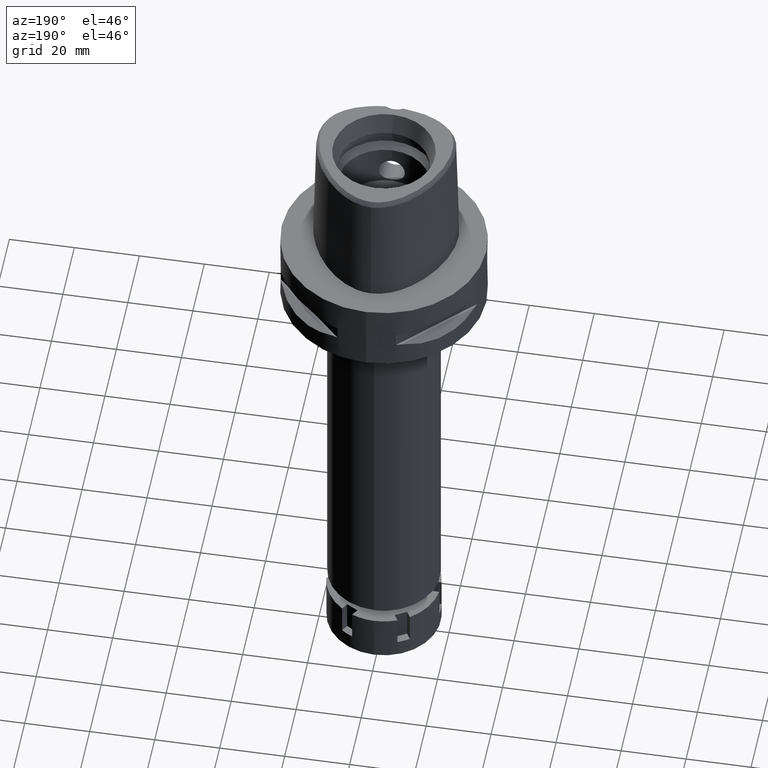
[diagram: clean part render]
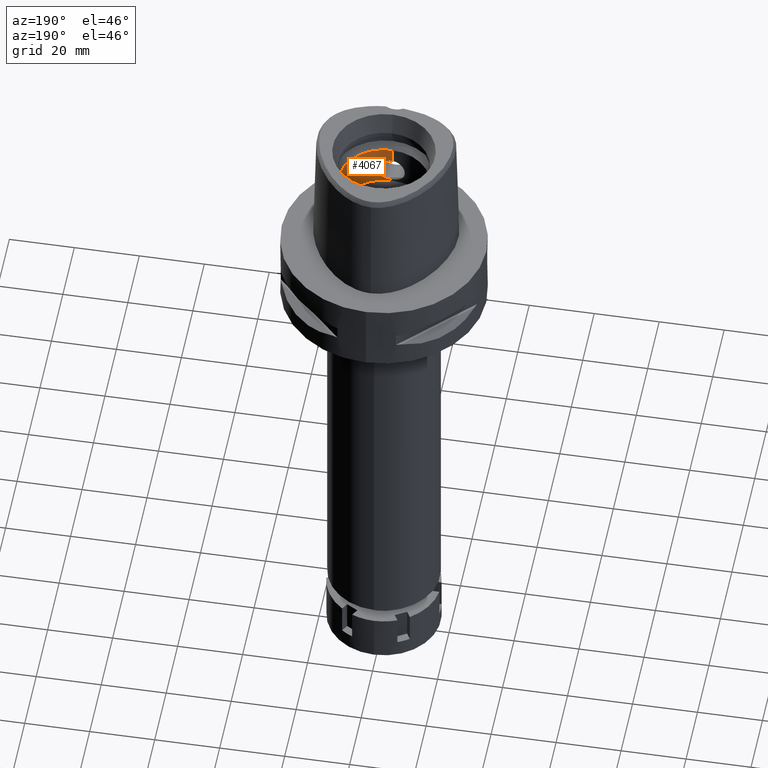
[diagram: same view with one face highlighted and labeled with its STEP entity id]
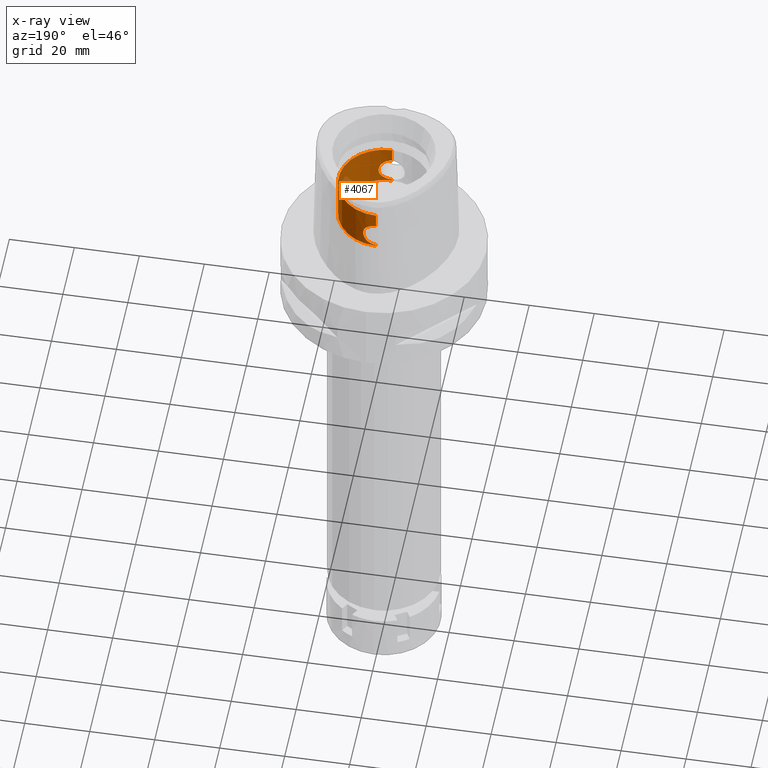
[diagram: x-ray of the same camera — body ghosted, the highlighted face saturated]
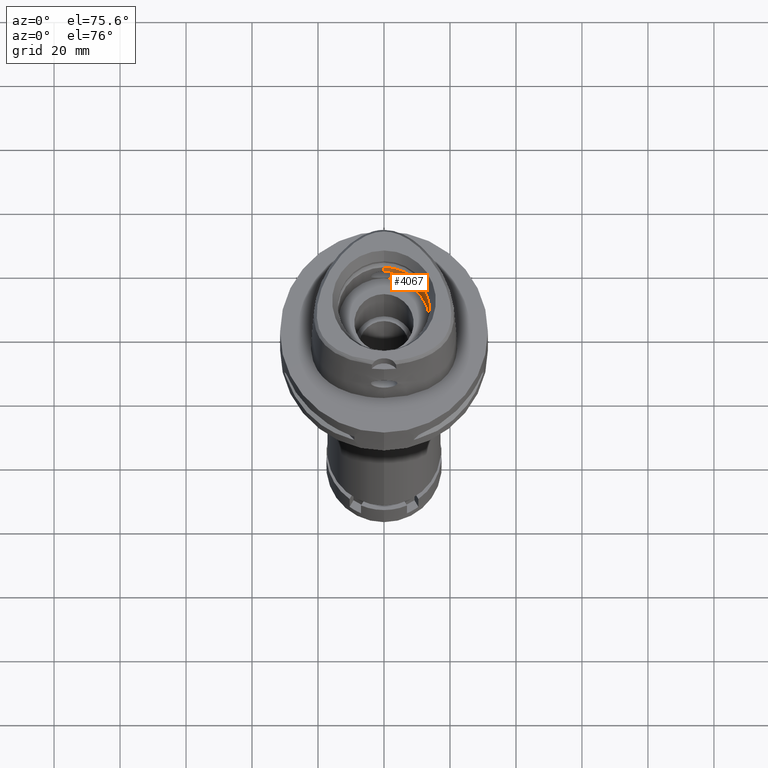
[diagram: same view with one face highlighted and labeled with its STEP entity id]
A machine part, auxiliary view. The second image highlights one B-rep face of the part: STEP entity #4067.
The next image is the same camera in x-ray: the body ghosted, the highlighted face saturated — about 9% of this face is hidden behind the body in this view.
A second angle (auxiliary view) of the same face is appended — the face is thin or edge-on in the first view.
In plain terms, the highlighted cylindrical surface (partial cylindrical patch) has radius 14 mm, axis along (0, 0, -1).
Its self-contained STEP definition (entity closure, byte-faithful):
#29 = CARTESIAN_POINT ( 'NONE',  ( 3.444134305109939564, -13.56976516763156049, 13.36865222198565561 ) ) ;
#44 = CARTESIAN_POINT ( 'NONE',  ( 1.600065394692234744, 13.90814645047113807, 19.22055538723221702 ) ) ;
#92 = DIRECTION ( 'NONE',  ( 0.0000000000000000000, -1.000000000000000000, 0.0000000000000000000 ) ) ;
#102 = CARTESIAN_POINT ( 'NONE',  ( 1.994196793350470953, 13.85732250606946003, 11.97431708272922002 ) ) ;
#104 = AXIS2_PLACEMENT_3D ( 'NONE', #5127, #3777, #3379 ) ;
#106 = EDGE_CURVE ( 'NONE', #5236, #1822, #3672, .T. ) ;
#125 = LINE ( 'NONE', #4030, #4649 ) ;
#135 = CARTESIAN_POINT ( 'NONE',  ( 3.267860856929353019, -13.61367823520136078, 13.10390269899082583 ) ) ;
#161 = CARTESIAN_POINT ( 'NONE',  ( 1.516910412645901429, 13.91749993127318064, 11.74477520274085229 ) ) ;
#163 = CARTESIAN_POINT ( 'NONE',  ( 3.702139074826315213, -13.50182043943946120, 13.85345734740507950 ) ) ;
#188 = CARTESIAN_POINT ( 'NONE',  ( 2.987578035450121572, -13.67819521536447702, 18.24080360132781919 ) ) ;
#205 = EDGE_CURVE ( 'NONE', #1822, #2465, #125, .T. ) ;
#211 = CARTESIAN_POINT ( 'NONE',  ( 2.749405349986303371, 13.72738952680676761, 12.52574890524282303 ) ) ;
#213 = CARTESIAN_POINT ( 'NONE',  ( 3.321853759952848595, -13.60021613419694297, 17.81705094759875152 ) ) ;
#233 = CARTESIAN_POINT ( 'NONE',  ( 0.0000000000000000000, -14.00000000000000000, 19.55000000000000071 ) ) ;
#242 = CARTESIAN_POINT ( 'NONE',  ( 2.619673022922138994, 13.75271275996641940, 12.41039726462985016 ) ) ;
#244 = CARTESIAN_POINT ( 'NONE',  ( 2.903830259238845191, -13.69557610161474948, 12.67649343709667953 ) ) ;
#270 = CARTESIAN_POINT ( 'NONE',  ( 2.705631081828257845, 13.73602433004955259, 12.48611241062261534 ) ) ;
#274 = CARTESIAN_POINT ( 'NONE',  ( 2.632435958395578091, -13.75053331393012712, 12.41927859767038989 ) ) ;
#286 = ORIENTED_EDGE ( 'NONE', *, *, #667, .T. ) ;
#302 = CARTESIAN_POINT ( 'NONE',  ( 3.359020109898814610, 13.59103542221254735, 13.23737089536243872 ) ) ;
#324 = CARTESIAN_POINT ( 'NONE',  ( 0.0000000000000000000, 0.0000000000000000000, 11.00000000000000000 ) ) ;
#334 = CARTESIAN_POINT ( 'NONE',  ( 3.361880068163155766, 13.59032751575134057, 13.24162249144547943 ) ) ;
#337 = CARTESIAN_POINT ( 'NONE',  ( 2.286401869814578713, -13.81203602588922230, 12.15707754366347437 ) ) ;
#360 = CARTESIAN_POINT ( 'NONE',  ( 2.356179768647385320, -13.80026442332236236, 12.20580376818401902 ) ) ;
#372 = EDGE_CURVE ( 'NONE', #5517, #5236, #1605, .T. ) ;
#385 = CARTESIAN_POINT ( 'NONE',  ( 2.993275682879698252, 13.67636296169212606, 18.22847972466929889 ) ) ;
#397 = FACE_OUTER_BOUND ( 'NONE', #674, .T. ) ;
#413 = EDGE_CURVE ( 'NONE', #5517, #5002, #3748, .T. ) ;
#460 = CARTESIAN_POINT ( 'NONE',  ( 3.649300473937637346, -13.51628050932879610, 13.73856294195509165 ) ) ;
#492 = CARTESIAN_POINT ( 'NONE',  ( 3.393648836081902154, -13.58244002077893064, 13.28961777950231671 ) ) ;
#521 = CARTESIAN_POINT ( 'NONE',  ( 0.0000000000000000000, -14.00000000000000000, 11.44999999999999929 ) ) ;
#561 = VECTOR ( 'NONE', #3531, 1000.000000000000000 ) ;
#600 = CARTESIAN_POINT ( 'NONE',  ( 3.754236443711939319, -13.48734669257275520, 13.98069631227876997 ) ) ;
#627 = CARTESIAN_POINT ( 'NONE',  ( 3.300146341868730016, -13.60553517925856859, 17.84781835519089199 ) ) ;
#630 = VERTEX_POINT ( 'NONE', #521 ) ;
#652 = CARTESIAN_POINT ( 'NONE',  ( 3.731947233726997659, 13.49355243646696678, 13.92674594029439028 ) ) ;
#654 = CARTESIAN_POINT ( 'NONE',  ( 2.824278146738441464, -13.71216806335095839, 18.40282419414096537 ) ) ;
#667 = EDGE_CURVE ( 'NONE', #4458, #5371, #1757, .T. ) ;
#674 = EDGE_LOOP ( 'NONE', ( #4596, #3588, #5116, #1867, #286, #4916, #1961, #1020 ) ) ;
#682 = CARTESIAN_POINT ( 'NONE',  ( 2.794188265665984883, 13.71831884113747613, 12.56820068599706985 ) ) ;
#711 = CARTESIAN_POINT ( 'NONE',  ( 3.253122838619350254, 13.61695847484784849, 13.08700209496323019 ) ) ;
#727 = CARTESIAN_POINT ( 'NONE',  ( 0.0000000000000000000, 14.00000000000000000, 11.00000000000000000 ) ) ;
#740 = CARTESIAN_POINT ( 'NONE',  ( 3.386213530919897519, 13.58429339872629527, 17.72172867399999774 ) ) ;
#742 = CARTESIAN_POINT ( 'NONE',  ( 2.474909159131547742, -13.77946166279600604, 12.29346908443046082 ) ) ;
#767 = CARTESIAN_POINT ( 'NONE',  ( 3.740349717813418629, 13.49122537259350985, 13.94682241177603288 ) ) ;
#798 = CARTESIAN_POINT ( 'NONE',  ( 2.425345327374605287, 13.78828047748906549, 18.74398637652861765 ) ) ;
#829 = CYLINDRICAL_SURFACE ( 'NONE', #104, 14.00000000000000000 ) ;
#844 = CARTESIAN_POINT ( 'NONE',  ( 2.474897425330298883, 13.77946391610721300, 18.70653994269108011 ) ) ;
#863 = CARTESIAN_POINT ( 'NONE',  ( 1.935032715380933022, -13.86568800699301107, 19.05844582699477030 ) ) ;
#890 = CARTESIAN_POINT ( 'NONE',  ( 3.641267411166618562, -13.51833533351897110, 17.27419309986312257 ) ) ;
#900 = CARTESIAN_POINT ( 'NONE',  ( 1.773859858298503012, 13.88717310935475524, 19.14143527715514992 ) ) ;
#914 = CARTESIAN_POINT ( 'NONE',  ( 3.217051634182986231, -13.62560167972273106, 17.96121095376075516 ) ) ;
#920 = CIRCLE ( 'NONE', #3365, 14.00000000000000000 ) ;
#1004 = CARTESIAN_POINT ( 'NONE',  ( 0.0000000000000000000, -14.00000000000000000, 11.00000000000000000 ) ) ;
#1016 = CARTESIAN_POINT ( 'NONE',  ( 3.612125191146808856, -13.52615234760308560, 17.33290907846121343 ) ) ;
#1020 = ORIENTED_EDGE ( 'NONE', *, *, #106, .F. ) ;
#1037 = VECTOR ( 'NONE', #2590, 1000.000000000000000 ) ;
#1049 = CARTESIAN_POINT ( 'NONE',  ( 3.344238891842337136, -13.59469201711720565, 17.78446291338760687 ) ) ;
#1074 = CARTESIAN_POINT ( 'NONE',  ( 3.354680329558042740, 13.59210945296616124, 13.23093247310055709 ) ) ;
#1077 = CARTESIAN_POINT ( 'NONE',  ( 4.027167981715002121, -13.40875010522974264, 14.99686531039766102 ) ) ;
#1097 = CARTESIAN_POINT ( 'NONE',  ( 3.267839164474154234, 13.61368337661979133, 17.89612675440678657 ) ) ;
#1100 = CARTESIAN_POINT ( 'NONE',  ( 0.4996170307295716984, -14.00000000000000355, 11.45000000000000107 ) ) ;
#1133 = CARTESIAN_POINT ( 'NONE',  ( 4.027216825694031499, 13.40877103518722357, 14.99603235332364903 ) ) ;
#1145 = CARTESIAN_POINT ( 'NONE',  ( 0.0000000000000000000, 14.00000000000000000, 24.19999999999999929 ) ) ;
#1163 = CARTESIAN_POINT ( 'NONE',  ( 3.444114222038757500, 13.56977022798827548, 17.63138026178977569 ) ) ;
#1190 = CARTESIAN_POINT ( 'NONE',  ( 3.612092317030220379, 13.52616139818937846, 13.66702611687112956 ) ) ;
#1221 = CARTESIAN_POINT ( 'NONE',  ( 2.286392394009954199, 13.81203773452794792, 18.84292893667480584 ) ) ;
#1266 = CARTESIAN_POINT ( 'NONE',  ( 1.758914213848991492, -13.88947879499290750, 19.15051695535359499 ) ) ;
#1318 = CARTESIAN_POINT ( 'NONE',  ( 4.027223470529567528, -13.40876944168271834, 16.00391502723211801 ) ) ;
#1341 = CARTESIAN_POINT ( 'NONE',  ( 3.953314660134230607, -13.43069195179432818, 14.61062672899636716 ) ) ;
#1385 = CARTESIAN_POINT ( 'NONE',  ( 1.210739730854810459, 13.94747155560755481, 11.63462642380360457 ) ) ;
#1444 = CARTESIAN_POINT ( 'NONE',  ( 3.731972597726727070, -13.49354487605845776, 17.07319389047233926 ) ) ;
#1469 = CARTESIAN_POINT ( 'NONE',  ( 1.643405570493256196, 13.90359095056343719, 11.79642487328022149 ) ) ;
#1472 = CARTESIAN_POINT ( 'NONE',  ( 3.144649004257418667, -13.64249969685167940, 12.94694166653767198 ) ) ;
#1506 = CARTESIAN_POINT ( 'NONE',  ( 2.619693227463823160, -13.75270887468661307, 18.58958572218649508 ) ) ;
#1526 = CARTESIAN_POINT ( 'NONE',  ( 3.377713256182831802, 13.58640893255668480, 17.73462749921339565 ) ) ;
#1552 = CARTESIAN_POINT ( 'NONE',  ( 3.792115437646679243, 13.47677934324684657, 16.92282825343409058 ) ) ;
#1587 = CARTESIAN_POINT ( 'NONE',  ( 4.027172463322592044, 13.40874935841158333, 16.00310739076642363 ) ) ;
#1590 = CARTESIAN_POINT ( 'NONE',  ( 2.010509632062541296, -13.85534039798980288, 11.98171533894314855 ) ) ;
#1605 = LINE ( 'NONE', #727, #4279 ) ;
#1610 = CARTESIAN_POINT ( 'NONE',  ( 0.0000000000000000000, 14.00000000000000000, 19.55000000000000071 ) ) ;
#1616 = CARTESIAN_POINT ( 'NONE',  ( 2.217806395109848783, 13.82320634840191609, 12.11121632281193605 ) ) ;
#1631 = CARTESIAN_POINT ( 'NONE',  ( 1.467178111807090790, -13.92282230864165449, 19.27494137943474684 ) ) ;
#1640 = CARTESIAN_POINT ( 'NONE',  ( 3.953315574815617683, 13.43069190713402961, 16.38937041772095071 ) ) ;
#1643 = CARTESIAN_POINT ( 'NONE',  ( 1.773869829159604228, -13.88717198022183119, 11.85856959825438750 ) ) ;
#1696 = CARTESIAN_POINT ( 'NONE',  ( 1.832682128947450639, 13.87954668815114267, 19.11223895308327414 ) ) ;
#1716 = CARTESIAN_POINT ( 'NONE',  ( 0.0000000000000000000, -14.00000000000000000, 24.19999999999999929 ) ) ;
#1735 = CARTESIAN_POINT ( 'NONE',  ( 1.516899316913374207, -13.91750090884602642, 19.25522928306563486 ) ) ;
#1745 = CARTESIAN_POINT ( 'NONE',  ( 2.903809840836996337, 13.69558042595941671, 18.32352754237540182 ) ) ;
#1757 = LINE ( 'NONE', #5132, #1037 ) ;
#1760 = CARTESIAN_POINT ( 'NONE',  ( 3.410743495979883466, -13.57816568318279060, 13.31599196301607613 ) ) ;
#1792 = LINE ( 'NONE', #1004, #561 ) ;
#1822 = VERTEX_POINT ( 'NONE', #1610 ) ;
#1827 = CARTESIAN_POINT ( 'NONE',  ( 2.083402352693820347, 13.84411649686240153, 12.02679904731587435 ) ) ;
#1860 = CARTESIAN_POINT ( 'NONE',  ( 1.307187133397777368, 13.93893568339380096, 11.66569962606505406 ) ) ;
#1864 = CARTESIAN_POINT ( 'NONE',  ( 2.564513564700615866, -13.76306012764494291, 18.63532267608531612 ) ) ;
#1867 = ORIENTED_EDGE ( 'NONE', *, *, #4763, .F. ) ;
#1888 = CARTESIAN_POINT ( 'NONE',  ( 1.467188112033413816, 13.92282148873381864, 11.72506250693289864 ) ) ;
#1890 = CARTESIAN_POINT ( 'NONE',  ( 3.760698389515004347, -13.48554827043490789, 13.99676262888475797 ) ) ;
#1918 = CARTESIAN_POINT ( 'NONE',  ( 3.446478207116122849, -13.56938250736906681, 17.63210248794235824 ) ) ;
#1946 = CARTESIAN_POINT ( 'NONE',  ( 4.049894426081060317, 13.40142315477328694, 15.74850829864217161 ) ) ;
#1949 = CARTESIAN_POINT ( 'NONE',  ( 3.850575600155246914, -13.46063562733534802, 16.78609245250580173 ) ) ;
#1961 = ORIENTED_EDGE ( 'NONE', *, *, #205, .F. ) ;
#1971 = CARTESIAN_POINT ( 'NONE',  ( 3.754225769600867846, 13.48734939608367966, 17.01933006533278814 ) ) ;
#1998 = CARTESIAN_POINT ( 'NONE',  ( 3.300115213668325165, 13.60554254247755246, 13.15213791935524590 ) ) ;
#2001 = CARTESIAN_POINT ( 'NONE',  ( 2.255326728030059957, -13.81714821576314733, 12.13607046265255107 ) ) ;
#2032 = CARTESIAN_POINT ( 'NONE',  ( 3.518019159262221862, 13.55099469856486749, 13.48901570195362432 ) ) ;
#2064 = CARTESIAN_POINT ( 'NONE',  ( 2.824245245329735532, 13.71217485459649943, 12.59714380724674676 ) ) ;
#2080 = CARTESIAN_POINT ( 'NONE',  ( 1.994209348898474676, -13.85732070567407170, 19.02567586467320737 ) ) ;
#2090 = CARTESIAN_POINT ( 'NONE',  ( 2.322867095772036539, 13.80594945643857230, 18.81782271191790201 ) ) ;
#2121 = CARTESIAN_POINT ( 'NONE',  ( 0.4996109250117751199, 13.99999999999999822, 19.54999999999999005 ) ) ;
#2188 = CARTESIAN_POINT ( 'NONE',  ( 3.524216152961116677, -13.54926445640474597, 13.50320070279009421 ) ) ;
#2201 = CARTESIAN_POINT ( 'NONE',  ( 1.643112089889030569, 13.90317243032712291, 19.20194634168781533 ) ) ;
#2264 = CARTESIAN_POINT ( 'NONE',  ( 1.758911448488973184, 13.88947925419896201, 11.84948192320104532 ) ) ;
#2293 = CARTESIAN_POINT ( 'NONE',  ( 3.381275431629196859, -13.58552310375113947, 13.27076317275104600 ) ) ;
#2310 = DIRECTION ( 'NONE',  ( 0.0000000000000000000, 0.0000000000000000000, 1.000000000000000000 ) ) ;
#2327 = CARTESIAN_POINT ( 'NONE',  ( 3.681917144189346125, -13.50730066061704093, 17.18730806971668201 ) ) ;
#2354 = CARTESIAN_POINT ( 'NONE',  ( 3.359058616904238459, -13.59102609449451116, 17.76257193799834155 ) ) ;
#2375 = CARTESIAN_POINT ( 'NONE',  ( 3.524199374407259722, 13.54926875963957933, 17.49682897130887227 ) ) ;
#2378 = CARTESIAN_POINT ( 'NONE',  ( 3.354718119057051418, -13.59210031745036140, 17.76901166031866452 ) ) ;
#2407 = CARTESIAN_POINT ( 'NONE',  ( 3.098494805694566256, 13.65307097543445813, 18.10922060507405362 ) ) ;
#2433 = CARTESIAN_POINT ( 'NONE',  ( 3.092390698714773567, 13.65467114209335264, 12.88130927472243847 ) ) ;
#2436 = CARTESIAN_POINT ( 'NONE',  ( 2.993295809006948360, -13.67635858830081474, 12.77154234738791239 ) ) ;
#2459 = CARTESIAN_POINT ( 'NONE',  ( 3.750524584725995147, 13.48837842770463169, 17.02843767657987328 ) ) ;
#2462 = CARTESIAN_POINT ( 'NONE',  ( 2.749429150023159796, -13.72794355115766329, 12.52109900925337094 ) ) ;
#2465 = VERTEX_POINT ( 'NONE', #1145 ) ;
#2490 = CARTESIAN_POINT ( 'NONE',  ( 2.407026743236367672, 13.79179092510370097, 12.24014823374410454 ) ) ;
#2534 = DIRECTION ( 'NONE',  ( 0.0000000000000000000, 0.0000000000000000000, 1.000000000000000000 ) ) ;
#2546 = CARTESIAN_POINT ( 'NONE',  ( 2.935444872375262637, 13.68884853175270422, 18.29060286011752723 ) ) ;
#2573 = CARTESIAN_POINT ( 'NONE',  ( 1.559041427489886278, 13.91280564626705818, 19.23793945981500997 ) ) ;
#2590 = DIRECTION ( 'NONE',  ( 0.0000000000000000000, 0.0000000000000000000, 1.000000000000000000 ) ) ;
#2595 = CARTESIAN_POINT ( 'NONE',  ( 2.083417932766036262, -13.84411419571719470, 18.97319161937867094 ) ) ;
#2619 = CARTESIAN_POINT ( 'NONE',  ( 4.050109039351831086, -13.40137442886396535, 15.74496307468086265 ) ) ;
#2643 = CARTESIAN_POINT ( 'NONE',  ( 2.225307842479133935, -13.82200032480936791, 18.88386244170206041 ) ) ;
#2692 = CARTESIAN_POINT ( 'NONE',  ( 0.0000000000000000000, 14.00000000000000000, 11.44999999999999929 ) ) ;
#2710 = CARTESIAN_POINT ( 'NONE',  ( 0.0000000000000000000, 14.00000000000000000, 11.00000000000000000 ) ) ;
#2744 = CARTESIAN_POINT ( 'NONE',  ( 3.253150413822480047, -13.61695205280139120, 17.91296083928640215 ) ) ;
#2773 = CARTESIAN_POINT ( 'NONE',  ( 2.230287417955466367, -13.82119696819923327, 18.88058087294110976 ) ) ;
#2795 = CARTESIAN_POINT ( 'NONE',  ( 3.557088666341913452, 13.54068383479801696, 17.43752651043655888 ) ) ;
#2798 = CARTESIAN_POINT ( 'NONE',  ( 2.705656092661654188, -13.73601936352376995, 18.51386516676384986 ) ) ;
#2822 = CARTESIAN_POINT ( 'NONE',  ( 3.864694685434272969, 13.45627952657940796, 16.71292491331624319 ) ) ;
#2842 = AXIS2_PLACEMENT_3D ( 'NONE', #324, #2874, #4243 ) ;
#2853 = CARTESIAN_POINT ( 'NONE',  ( 3.344202712280511136, 13.59470072215733438, 13.21548413948281997 ) ) ;
#2857 = CARTESIAN_POINT ( 'NONE',  ( 1.559056483625618883, -13.91280418779705386, 11.76206681924250752 ) ) ;
#2874 = DIRECTION ( 'NONE',  ( 0.0000000000000000000, 0.0000000000000000000, -1.000000000000000000 ) ) ;
#2883 = CARTESIAN_POINT ( 'NONE',  ( 3.446439376995800608, 13.56939223702177699, 13.36783492912207905 ) ) ;
#2900 = CARTESIAN_POINT ( 'NONE',  ( 1.210730804435200314, -13.94747211364480322, 19.36537636551466690 ) ) ;
#2913 = CARTESIAN_POINT ( 'NONE',  ( 3.833372613769522541, 13.46518805228033244, 16.80994934954906128 ) ) ;
#2916 = CARTESIAN_POINT ( 'NONE',  ( 2.268773195283242394, -13.81494468100451023, 12.14511832103185718 ) ) ;
#2931 = CARTESIAN_POINT ( 'NONE',  ( 0.2481241772469208740, -14.00000000000000000, 19.55000000000000071 ) ) ;
#2944 = CARTESIAN_POINT ( 'NONE',  ( 2.255317399664305000, 13.81714987027313235, 18.86393579140712973 ) ) ;
#2994 = CARTESIAN_POINT ( 'NONE',  ( 2.010501717821064460, 13.85534156541368667, 19.01828921528356986 ) ) ;
#3011 = CARTESIAN_POINT ( 'NONE',  ( 1.017639181934914649, -13.96323047955135976, 19.42236212083248503 ) ) ;
#3021 = CARTESIAN_POINT ( 'NONE',  ( 1.686542341523468602, 13.89794981159688980, 19.18226932052732536 ) ) ;
#3042 = CARTESIAN_POINT ( 'NONE',  ( 3.864698997087948396, -13.45627842728415935, 14.28708901167128609 ) ) ;
#3052 = CARTESIAN_POINT ( 'NONE',  ( 2.261340657161257095, 13.81616386827182019, 18.85988797640481351 ) ) ;
#3064 = CARTESIAN_POINT ( 'NONE',  ( 2.838009928923838299, -13.70933862723131291, 18.38942009772304687 ) ) ;
#3167 = CARTESIAN_POINT ( 'NONE',  ( 3.792123985356183447, -13.47677720437842019, 14.07719458704158022 ) ) ;
#3199 = CARTESIAN_POINT ( 'NONE',  ( 3.098515381885727393, -13.65306636117298389, 12.89080379854775238 ) ) ;
#3232 = CARTESIAN_POINT ( 'NONE',  ( 3.740374405824263171, -13.49121797331939376, 17.05311813184026093 ) ) ;
#3250 = CARTESIAN_POINT ( 'NONE',  ( 3.410721871959659257, 13.57817107781601074, 17.68404181484999071 ) ) ;
#3278 = CARTESIAN_POINT ( 'NONE',  ( 3.649287754606132417, 13.51628378879347814, 17.26146357314931024 ) ) ;
#3312 = CARTESIAN_POINT ( 'NONE',  ( 3.850558670354384372, 13.46064117905768498, 14.21385490519483774 ) ) ;
#3315 = CARTESIAN_POINT ( 'NONE',  ( 2.935464796398259413, -13.68884427349787636, 12.70941809089527830 ) ) ;
#3338 = CARTESIAN_POINT ( 'NONE',  ( 2.987551070598235103, 13.67820116345343351, 12.75916637442935020 ) ) ;
#3340 = CARTESIAN_POINT ( 'NONE',  ( 1.571471244899176778, -13.91140584751626186, 11.76727716384500333 ) ) ;
#3355 = CARTESIAN_POINT ( 'NONE',  ( 2.206604282644675674, -13.82500263683901487, 18.89610616578819347 ) ) ;
#3365 = AXIS2_PLACEMENT_3D ( 'NONE', #5197, #2310, #92 ) ;
#3367 = CARTESIAN_POINT ( 'NONE',  ( 3.770295828577627351, 13.48287449147565376, 16.97915267913733572 ) ) ;
#3370 = CARTESIAN_POINT ( 'NONE',  ( 1.029195579378260561, -13.97152789805618411, 11.54372935797607624 ) ) ;
#3379 = DIRECTION ( 'NONE',  ( 0.0000000000000000000, -1.000000000000000000, 0.0000000000000000000 ) ) ;
#3420 = CARTESIAN_POINT ( 'NONE',  ( 1.499090398665863022, -13.91942988264788639, 19.26238249073140807 ) ) ;
#3429 = CARTESIAN_POINT ( 'NONE',  ( 2.130873031675732943, 13.83743700475326222, 18.94716637659228908 ) ) ;
#3442 = CARTESIAN_POINT ( 'NONE',  ( 0.8886530556046985385, -13.97198512727722708, 19.45346844014616394 ) ) ;
#3452 = CARTESIAN_POINT ( 'NONE',  ( 2.268763823005850444, 13.81494635581264063, 18.85488801691585081 ) ) ;
#3469 = CARTESIAN_POINT ( 'NONE',  ( 2.180430719104277770, -13.82916524274332204, 18.91303019137124508 ) ) ;
#3501 = CARTESIAN_POINT ( 'NONE',  ( 3.386236333441687396, -13.58428775399595700, 13.27830608080645547 ) ) ;
#3515 = EDGE_CURVE ( 'NONE', #5371, #2465, #920, .T. ) ;
#3531 = DIRECTION ( 'NONE',  ( 0.0000000000000000000, 0.0000000000000000000, 1.000000000000000000 ) ) ;
#3543 = EDGE_CURVE ( 'NONE', #5002, #630, #1792, .T. ) ;
#3562 = DIRECTION ( 'NONE',  ( 0.0000000000000000000, 0.0000000000000000000, 1.000000000000000000 ) ) ;
#3567 = CARTESIAN_POINT ( 'NONE',  ( 2.128115661502098632, 13.83734960245050161, 12.05387220701158668 ) ) ;
#3588 = ORIENTED_EDGE ( 'NONE', *, *, #413, .T. ) ;
#3596 = CARTESIAN_POINT ( 'NONE',  ( 2.180412222332861027, 13.82916808513869356, 12.08695799697060025 ) ) ;
#3598 = CARTESIAN_POINT ( 'NONE',  ( 2.312907190676523506, -13.80784060208447528, 18.82598581438754337 ) ) ;
#3619 = CARTESIAN_POINT ( 'NONE',  ( 2.206585077432667852, 13.82500562469161487, 12.10388135703218460 ) ) ;
#3621 = CARTESIAN_POINT ( 'NONE',  ( 3.557104272937164247, -13.54067981902765361, 13.56250217907580513 ) ) ;
#3651 = CARTESIAN_POINT ( 'NONE',  ( 3.518056051390934691, -13.55098508630389631, 17.51091968138044663 ) ) ;
#3672 = B_SPLINE_CURVE_WITH_KNOTS ( 'NONE', 3,
 ( #2692, #4033, #4005, #5287, #5230, #1385, #1860, #4475, #1888, #4395, #161, #1469, #2264, #3975, #102, #1827, #3567, #3596, #3619, #1616, #4202, #5462, #4086, #2490, #4562, #242, #270, #211, #682, #2064, #4167, #3338, #2433, #3704, #711, #1998, #5485, #2853, #1074, #302, #334, #4497, #2883, #2032, #1190, #3764, #4972, #3793, #5396, #652, #4143, #767, #3312, #3728, #1133, #5424, #1946, #1587, #1640, #5033, #2822, #2913, #1552, #3367, #5372, #1971, #2459, #4622, #3278, #2795, #2375, #5008, #1163, #3250, #4590, #740, #3680, #1526, #4945, #1097, #4527, #2407, #4118, #385, #2546, #1745, #4729, #3922, #844, #798, #5541, #2090, #1221, #3452, #3052, #5511, #2944, #3429, #2994, #1696, #900, #3021, #2201, #44, #4756, #2573, #3895, #2121, #5119 ),
 .UNSPECIFIED., .F., .F.,
 ( 4, 2, 2, 1, 1, 2, 2, 2, 2, 1, 1, 1, 2, 2, 2, 2, 1, 2, 2, 2, 2, 1, 1, 1, 2, 2, 2, 2, 1, 1, 2, 2, 2, 2, 2, 2, 1, 1, 1, 2, 2, 2, 2, 1, 1, 1, 2, 2, 2, 2, 2, 2, 2, 2, 1, 1, 1, 2, 2, 2, 2, 1, 2, 2, 4 ),
 ( 0.0000000000000000000, 0.06250000000002138567, 0.09375000000003208545, 0.1093750000000373868, 0.1171875000000400235, 0.1210937500000413142, 0.1250000000000425771, 0.1562500000000529021, 0.1718750000000581479, 0.1796875000000608402, 0.1835937500000622002, 0.1855468750000628664, 0.1865234375000631162, 0.1875000000000633660, 0.2187500000000720257, 0.2343750000000762446, 0.2421875000000783817, 0.2460937500000794087, 0.2500000000000804357, 0.2812500000000883738, 0.2968750000000922040, 0.3046875000000943134, 0.3085937500000953126, 0.3105468750000957567, 0.3115234375000957012, 0.3125000000000956457, 0.3437500000000897615, 0.3593750000000867639, 0.3671875000000850986, 0.3710937500000843214, 0.3730468750000841549, 0.3750000000000839884, 0.4375000000000763833, 0.5000000000000687228, 0.5625000000000610623, 0.5937500000000568434, 0.6093750000000547340, 0.6171875000000537348, 0.6210937500000535127, 0.6230468750000534017, 0.6250000000000532907, 0.6562500000000528466, 0.6718750000000526246, 0.6796875000000521805, 0.6835937500000519584, 0.6855468750000521805, 0.6865234375000519584, 0.6875000000000517364, 0.7187500000000504041, 0.7343750000000500711, 0.7421875000000499600, 0.7500000000000498490, 0.7812500000000496270, 0.7968750000000497380, 0.8046875000000501821, 0.8085937500000504041, 0.8105468750000504041, 0.8115234375000504041, 0.8125000000000504041, 0.8437500000000428546, 0.8593750000000391909, 0.8671875000000375255, 0.8710937500000365263, 0.8750000000000355271, 1.000000000000000000 ),
 .UNSPECIFIED. ) ;
#3680 = CARTESIAN_POINT ( 'NONE',  ( 3.381252386275208188, 13.58552879951880676, 17.72927178203262955 ) ) ;
#3682 = CARTESIAN_POINT ( 'NONE',  ( 2.425356293392302298, -13.78827839653583354, 12.25602180745960545 ) ) ;
#3704 = CARTESIAN_POINT ( 'NONE',  ( 3.217025596349118555, 13.62560769370299951, 13.03875506105696758 ) ) ;
#3728 = CARTESIAN_POINT ( 'NONE',  ( 3.927462924626538232, 13.43840419036665779, 14.47652859066138653 ) ) ;
#3732 = CARTESIAN_POINT ( 'NONE',  ( 1.643124464740160606, -13.90317117702929828, 11.79805916107681618 ) ) ;
#3748 = CIRCLE ( 'NONE', #2842, 14.00000000000000000 ) ;
#3764 = CARTESIAN_POINT ( 'NONE',  ( 3.641236061999908014, 13.51834413261587109, 13.72574250724094469 ) ) ;
#3777 = DIRECTION ( 'NONE',  ( 0.0000000000000000000, 0.0000000000000000000, -1.000000000000000000 ) ) ;
#3793 = CARTESIAN_POINT ( 'NONE',  ( 3.701448599127524108, 13.50196410077353448, 13.85577559946501047 ) ) ;
#3795 = CARTESIAN_POINT ( 'NONE',  ( 2.130881178330037429, -13.83743566614538878, 12.05283858994643609 ) ) ;
#3895 = CARTESIAN_POINT ( 'NONE',  ( 1.029184106487188499, 13.97152837429127814, 19.45627297032396186 ) ) ;
#3911 = CARTESIAN_POINT ( 'NONE',  ( 3.471407568611402983, -13.56281871368658543, 13.41360808472617805 ) ) ;
#3922 = CARTESIAN_POINT ( 'NONE',  ( 2.632421440604336027, 13.75053619292203422, 18.58073368517403168 ) ) ;
#3975 = CARTESIAN_POINT ( 'NONE',  ( 1.935022422099377248, 13.86568947271855201, 11.94154862979159937 ) ) ;
#4005 = CARTESIAN_POINT ( 'NONE',  ( 0.5031375785651610588, 13.99299620741434325, 11.47286437004442305 ) ) ;
#4008 = CARTESIAN_POINT ( 'NONE',  ( 3.329855789848241709, -13.59830196918598055, 13.19313464223616705 ) ) ;
#4030 = CARTESIAN_POINT ( 'NONE',  ( 0.0000000000000000000, 14.00000000000000000, 19.55000000000000071 ) ) ;
#4033 = CARTESIAN_POINT ( 'NONE',  ( 0.2481266265099588697, 14.00000000000000000, 11.44999999999999929 ) ) ;
#4035 = CARTESIAN_POINT ( 'NONE',  ( 3.701476196218872250, -13.50195603622213092, 17.14416223936576600 ) ) ;
#4064 = CARTESIAN_POINT ( 'NONE',  ( 3.361919059612541449, -13.59031805818456284, 17.75831946434291808 ) ) ;
#4067 = ADVANCED_FACE ( 'NONE', ( #397 ), #829, .F. ) ;
#4086 = CARTESIAN_POINT ( 'NONE',  ( 2.312892876173468171, 13.80784294826023206, 12.17400404921139589 ) ) ;
#4089 = CARTESIAN_POINT ( 'NONE',  ( 3.362175151429778186, -13.59025468045918572, 17.75794138952741008 ) ) ;
#4118 = CARTESIAN_POINT ( 'NONE',  ( 3.020660456626143464, 13.67036005578519386, 18.19808468408423963 ) ) ;
#4120 = CARTESIAN_POINT ( 'NONE',  ( 2.261349992708959533, -13.81616220668975537, 12.14011830679867110 ) ) ;
#4143 = CARTESIAN_POINT ( 'NONE',  ( 3.737862436382984210, 13.49191471466118131, 13.94085186772397122 ) ) ;
#4145 = CARTESIAN_POINT ( 'NONE',  ( 2.322876849046348280, -13.80594766825983477, 12.18218411294631487 ) ) ;
#4165 = CARTESIAN_POINT ( 'NONE',  ( 0.0000000000000000000, 14.00000000000000000, 11.44999999999999929 ) ) ;
#4167 = CARTESIAN_POINT ( 'NONE',  ( 2.837973772893474411, 13.70934612522084173, 12.61054438063453098 ) ) ;
#4170 = CARTESIAN_POINT ( 'NONE',  ( 0.0000000000000000000, -14.00000000000000000, 11.44999999999999929 ) ) ;
#4202 = CARTESIAN_POINT ( 'NONE',  ( 2.225288147325894528, 13.82200341650443498, 12.11612460655873313 ) ) ;
#4243 = DIRECTION ( 'NONE',  ( 0.0000000000000000000, 1.000000000000000000, 0.0000000000000000000 ) ) ;
#4279 = VECTOR ( 'NONE', #2534, 1000.000000000000000 ) ;
#4303 = CARTESIAN_POINT ( 'NONE',  ( 0.5031329880713201197, -13.99299628181930544, 19.52713608389184330 ) ) ;
#4325 = CARTESIAN_POINT ( 'NONE',  ( 3.770305607765263467, -13.48287202864421452, 14.02087226160112010 ) ) ;
#4350 = CARTESIAN_POINT ( 'NONE',  ( 2.794219043454203799, -13.71831254960125079, 18.43176999258679416 ) ) ;
#4395 = CARTESIAN_POINT ( 'NONE',  ( 1.499100513058812201, 13.91942902670013638, 11.73762153891946447 ) ) ;
#4451 = CARTESIAN_POINT ( 'NONE',  ( 3.922079205926539913, -13.43983130148735583, 14.48117699415297821 ) ) ;
#4458 = VERTEX_POINT ( 'NONE', #233 ) ;
#4475 = CARTESIAN_POINT ( 'NONE',  ( 1.419273682516925206, 13.92782810608995625, 11.70655701251878789 ) ) ;
#4478 = CARTESIAN_POINT ( 'NONE',  ( 2.217825895420810767, -13.82320329823991401, 18.88877091520833318 ) ) ;
#4497 = CARTESIAN_POINT ( 'NONE',  ( 3.362135645915919735, 13.59026426608101623, 13.24199978628648466 ) ) ;
#4502 = CARTESIAN_POINT ( 'NONE',  ( 3.092415008935291088, -13.65466569416509302, 18.11866219970372427 ) ) ;
#4527 = CARTESIAN_POINT ( 'NONE',  ( 3.144628172867338201, 13.64250443836072435, 18.05308396090352474 ) ) ;
#4562 = CARTESIAN_POINT ( 'NONE',  ( 2.564495781835727684, 13.76306347781942740, 12.36466282433596042 ) ) ;
#4590 = CARTESIAN_POINT ( 'NONE',  ( 3.393626394335426788, 13.58244558944580405, 17.71041667753680571 ) ) ;
#4592 = CARTESIAN_POINT ( 'NONE',  ( 2.256430671647058350, -13.81696743697042251, 12.13681261213642415 ) ) ;
#4596 = ORIENTED_EDGE ( 'NONE', *, *, #372, .F. ) ;
#4608 = CARTESIAN_POINT ( 'NONE',  ( 1.419263858855973170, -13.92782887280988824, 19.29344666030895894 ) ) ;
#4622 = CARTESIAN_POINT ( 'NONE',  ( 3.702127444390315159, 13.50182339615068727, 17.14656876326777279 ) ) ;
#4642 = CARTESIAN_POINT ( 'NONE',  ( 2.128132661679641657, -13.83734705124413544, 18.94611731522211073 ) ) ;
#4649 = VECTOR ( 'NONE', #3562, 1000.000000000000000 ) ;
#4706 = CARTESIAN_POINT ( 'NONE',  ( 0.0000000000000000000, -14.00000000000000000, 11.00000000000000000 ) ) ;
#4719 = CARTESIAN_POINT ( 'NONE',  ( 1.307177758832643200, -13.93893633211208005, 19.33430355922904198 ) ) ;
#4729 = CARTESIAN_POINT ( 'NONE',  ( 2.749412118830250940, 13.72794699207909908, 18.47891641197558243 ) ) ;
#4745 = CARTESIAN_POINT ( 'NONE',  ( 3.833378784114828797, -13.46518651549687284, 14.19006897786093369 ) ) ;
#4756 = CARTESIAN_POINT ( 'NONE',  ( 1.571457089741343793, 13.91140721977019368, 19.23272879698699001 ) ) ;
#4763 = EDGE_CURVE ( 'NONE', #4458, #630, #5456, .T. ) ;
#4769 = CARTESIAN_POINT ( 'NONE',  ( 2.749433056070069270, -13.72738395001101530, 18.47422555712543257 ) ) ;
#4863 = CARTESIAN_POINT ( 'NONE',  ( 3.750535583141733742, -13.48837563529462713, 13.97158931176320351 ) ) ;
#4893 = CARTESIAN_POINT ( 'NONE',  ( 3.020680690208538355, -13.67035562331175491, 12.80193796120899208 ) ) ;
#4916 = ORIENTED_EDGE ( 'NONE', *, *, #3515, .T. ) ;
#4923 = CARTESIAN_POINT ( 'NONE',  ( 4.049890164045743646, -13.40142381087270174, 15.25144457808762510 ) ) ;
#4945 = CARTESIAN_POINT ( 'NONE',  ( 3.329833399432507335, 13.59830740143285155, 17.80689756936500245 ) ) ;
#4947 = CARTESIAN_POINT ( 'NONE',  ( 1.686553841137762522, -13.89794860813394628, 11.81773595103047825 ) ) ;
#4972 = CARTESIAN_POINT ( 'NONE',  ( 3.681888265789251768, 13.50730898608306596, 13.81262890101244345 ) ) ;
#5002 = VERTEX_POINT ( 'NONE', #4706 ) ;
#5008 = CARTESIAN_POINT ( 'NONE',  ( 3.471388650637377449, 13.56282351116202278, 17.58642340598301246 ) ) ;
#5010 = CARTESIAN_POINT ( 'NONE',  ( 1.600078814842328390, -13.90814512833361505, 11.77945038584475412 ) ) ;
#5033 = CARTESIAN_POINT ( 'NONE',  ( 3.922078288965881399, 13.43983163058567598, 16.51882742556871264 ) ) ;
#5110 = CARTESIAN_POINT ( 'NONE',  ( 1.643402327193238976, -13.90359116571691622, 19.20357680869639339 ) ) ;
#5116 = ORIENTED_EDGE ( 'NONE', *, *, #3543, .T. ) ;
#5119 = CARTESIAN_POINT ( 'NONE',  ( 0.0000000000000000000, 14.00000000000000000, 19.55000000000000071 ) ) ;
#5127 = CARTESIAN_POINT ( 'NONE',  ( 0.0000000000000000000, 0.0000000000000000000, 39.89999999999999858 ) ) ;
#5132 = CARTESIAN_POINT ( 'NONE',  ( 0.0000000000000000000, -14.00000000000000000, 19.55000000000000071 ) ) ;
#5159 = CARTESIAN_POINT ( 'NONE',  ( 3.737887346441685743, -13.49190726130687601, 17.05908841074321813 ) ) ;
#5191 = CARTESIAN_POINT ( 'NONE',  ( 3.927475894227258735, -13.43840014691404683, 16.52342187611872504 ) ) ;
#5197 = CARTESIAN_POINT ( 'NONE',  ( 0.0000000000000000000, 0.0000000000000000000, 24.19999999999999929 ) ) ;
#5230 = CARTESIAN_POINT ( 'NONE',  ( 1.017647129622376134, 13.96323008892529138, 11.57763991488771715 ) ) ;
#5236 = VERTEX_POINT ( 'NONE', #4165 ) ;
#5287 = CARTESIAN_POINT ( 'NONE',  ( 0.8886602406458201653, 13.97198482965736588, 11.54653314444766821 ) ) ;
#5289 = CARTESIAN_POINT ( 'NONE',  ( 2.407040127179533417, -13.79178862306922326, 18.75984205951462869 ) ) ;
#5319 = CARTESIAN_POINT ( 'NONE',  ( 3.377736576017047909, -13.58640317541383702, 13.26540774977728709 ) ) ;
#5349 = CARTESIAN_POINT ( 'NONE',  ( 3.723011875671556670, -13.49602288719285070, 17.09439534801255434 ) ) ;
#5371 = VERTEX_POINT ( 'NONE', #1716 ) ;
#5372 = CARTESIAN_POINT ( 'NONE',  ( 3.760688074393179203, 13.48555087701916833, 17.00326317844757540 ) ) ;
#5396 = CARTESIAN_POINT ( 'NONE',  ( 3.722985834075813294, 13.49603060517026876, 13.90554383511542191 ) ) ;
#5424 = CARTESIAN_POINT ( 'NONE',  ( 4.050104837865987406, 13.40137507185002264, 15.25494482419060205 ) ) ;
#5456 = B_SPLINE_CURVE_WITH_KNOTS ( 'NONE', 3,
 ( #5475, #2931, #4303, #3442, #3011, #2900, #4719, #4608, #1631, #3420, #1735, #5110, #1266, #863, #2080, #2595, #4642, #3469, #3355, #4478, #2643, #2773, #3598, #5289, #1864, #1506, #2798, #4769, #4350, #654, #3064, #188, #4502, #914, #2744, #627, #213, #1049, #2378, #2354, #4064, #4089, #1918, #3651, #1016, #890, #2327, #4035, #5349, #1444, #5159, #3232, #1949, #5191, #1318, #2619, #4923, #1077, #1341, #4451, #3042, #4745, #3167, #4325, #1890, #600, #4863, #163, #460, #3621, #2188, #3911, #29, #1760, #492, #3501, #2293, #5319, #4008, #135, #1472, #3199, #4893, #2436, #3315, #244, #2462, #274, #742, #3682, #360, #4145, #337, #2916, #4120, #4592, #2001, #3795, #1590, #5487, #1643, #4947, #3732, #5010, #3340, #2857, #3370, #1100, #4170 ),
 .UNSPECIFIED., .F., .F.,
 ( 4, 2, 2, 1, 1, 2, 2, 2, 2, 1, 1, 1, 2, 2, 2, 2, 1, 2, 2, 2, 2, 1, 1, 1, 2, 2, 2, 2, 1, 1, 2, 2, 2, 2, 2, 2, 1, 1, 1, 2, 2, 2, 2, 1, 1, 1, 2, 2, 2, 2, 2, 2, 2, 2, 1, 1, 1, 2, 2, 2, 2, 1, 2, 2, 4 ),
 ( 0.0000000000000000000, 0.06249999999994695909, 0.09374999999992046640, 0.1093749999999070882, 0.1171874999999003714, 0.1210937499998970546, 0.1249999999998937378, 0.1562499999998678002, 0.1718749999998550326, 0.1796874999998488431, 0.1835937499998455125, 0.1855468749998440137, 0.1865234374998430977, 0.1874999999998421818, 0.2187499999998184230, 0.2343749999998064881, 0.2421874999998005484, 0.2460937499997977451, 0.2499999999997949973, 0.2812499999997747357, 0.2968749999997642441, 0.3046874999997590816, 0.3085937499997564726, 0.3105468749997550848, 0.3115234374997549183, 0.3124999999997547517, 0.3437499999997624123, 0.3593749999997665201, 0.3671874999997685185, 0.3710937499997691846, 0.3730468749997694622, 0.3749999999997697397, 0.4374999999997811195, 0.4999999999997926103, 0.5624999999998034905, 0.5937499999998089306, 0.6093749999998114841, 0.6171874999998129274, 0.6210937499998135936, 0.6230468749998141487, 0.6249999999998147038, 0.6562499999998239186, 0.6718749999998283595, 0.6796874999998306910, 0.6835937499998319122, 0.6855468749998325784, 0.6865234374998329114, 0.6874999999998333555, 0.7187499999998478994, 0.7343749999998552269, 0.7421874999998590017, 0.7499999999998626654, 0.7812499999998773204, 0.7968749999998847589, 0.8046874999998885336, 0.8085937499998905320, 0.8105468749998913092, 0.8115234374998919753, 0.8124999999998925304, 0.8437499999999107381, 0.8593749999999200639, 0.8671874999999246159, 0.8710937499999267253, 0.8749999999999288347, 1.000000000000000000 ),
 .UNSPECIFIED. ) ;
#5462 = CARTESIAN_POINT ( 'NONE',  ( 2.230267356648572896, 13.82120012601264136, 12.11940589182371220 ) ) ;
#5475 = CARTESIAN_POINT ( 'NONE',  ( 0.0000000000000000000, -14.00000000000000000, 19.55000000000000071 ) ) ;
#5485 = CARTESIAN_POINT ( 'NONE',  ( 3.321820541935854187, 13.60022405027051562, 13.18290148898179837 ) ) ;
#5487 = CARTESIAN_POINT ( 'NONE',  ( 1.832691376603167388, -13.87954557478522410, 11.88776574647553552 ) ) ;
#5511 = CARTESIAN_POINT ( 'NONE',  ( 2.256421358878216488, 13.81696909001792939, 18.86319363595353593 ) ) ;
#5517 = VERTEX_POINT ( 'NONE', #2710 ) ;
#5541 = CARTESIAN_POINT ( 'NONE',  ( 2.356169659980356990, 13.80026630004203447, 18.79420345841271711 ) ) ;